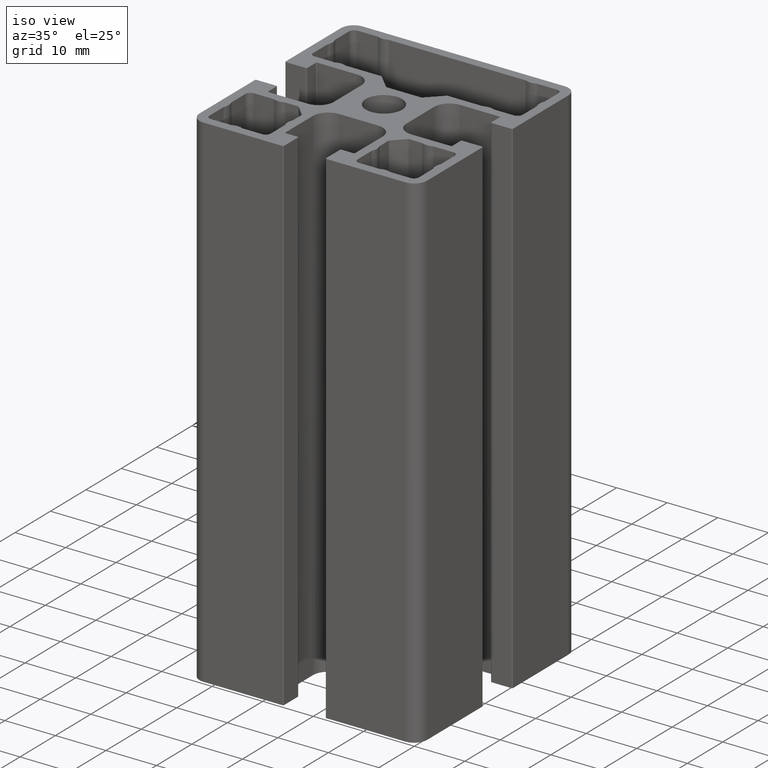
[diagram: clean part render]
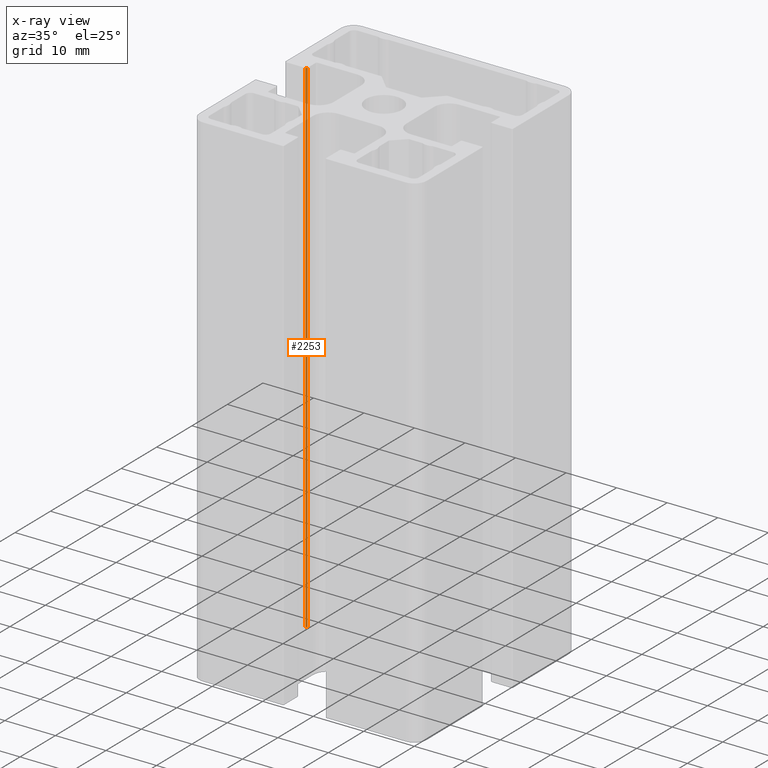
[diagram: x-ray — body ghosted, one internal face saturated and labeled with its STEP entity id]
A machine part, iso view, then the same camera in x-ray: the body is ghosted and one INTERNAL B-rep face — a face not visible from any outside direction — is saturated and labeled: STEP entity #2253.
In plain terms, the highlighted cylindrical surface (edge-blend (fillet) strip) has radius 0.2 mm, axis along (0, 0, 1).
Its self-contained STEP definition (entity closure, byte-faithful):
#82=CIRCLE('',#2429,0.199999999999999);
#83=CIRCLE('',#2430,0.199999999999999);
#159=CYLINDRICAL_SURFACE('',#2428,0.199999999999999);
#248=FACE_OUTER_BOUND('',#363,.T.);
#363=EDGE_LOOP('',(#1710,#1711,#1712,#1713));
#560=LINE('',#3598,#792);
#561=LINE('',#3604,#793);
#792=VECTOR('',#2912,100.);
#793=VECTOR('',#2919,100.);
#1018=VERTEX_POINT('',#3594);
#1019=VERTEX_POINT('',#3596);
#1020=VERTEX_POINT('',#3600);
#1021=VERTEX_POINT('',#3602);
#1308=EDGE_CURVE('',#1019,#1018,#560,.T.);
#1309=EDGE_CURVE('',#1018,#1020,#82,.T.);
#1310=EDGE_CURVE('',#1021,#1019,#83,.T.);
#1311=EDGE_CURVE('',#1021,#1020,#561,.T.);
#1710=ORIENTED_EDGE('',*,*,#1309,.F.);
#1711=ORIENTED_EDGE('',*,*,#1308,.F.);
#1712=ORIENTED_EDGE('',*,*,#1310,.F.);
#1713=ORIENTED_EDGE('',*,*,#1311,.T.);
#2253=ADVANCED_FACE('',(#248),#159,.T.);
#2428=AXIS2_PLACEMENT_3D('',#3599,#2913,#2914);
#2429=AXIS2_PLACEMENT_3D('',#3601,#2915,#2916);
#2430=AXIS2_PLACEMENT_3D('',#3603,#2917,#2918);
#2912=DIRECTION('',(0.,0.,1.));
#2913=DIRECTION('center_axis',(0.,0.,1.));
#2914=DIRECTION('ref_axis',(0.,1.,0.));
#2915=DIRECTION('center_axis',(0.,0.,1.));
#2916=DIRECTION('ref_axis',(0.,1.,0.));
#2917=DIRECTION('center_axis',(0.,0.,-1.));
#2918=DIRECTION('ref_axis',(0.,1.,0.));
#2919=DIRECTION('',(0.,0.,1.));
#3594=CARTESIAN_POINT('',(-18.4,4.15,100.));
#3596=CARTESIAN_POINT('',(-18.4,4.15,0.));
#3598=CARTESIAN_POINT('',(-18.4,4.15,0.));
#3599=CARTESIAN_POINT('Origin',(-18.4,4.35,0.));
#3600=CARTESIAN_POINT('',(-18.2,4.35,100.));
#3601=CARTESIAN_POINT('Origin',(-18.4,4.35,100.));
#3602=CARTESIAN_POINT('',(-18.2,4.35,0.));
#3603=CARTESIAN_POINT('Origin',(-18.4,4.35,0.));
#3604=CARTESIAN_POINT('',(-18.2,4.35,0.));